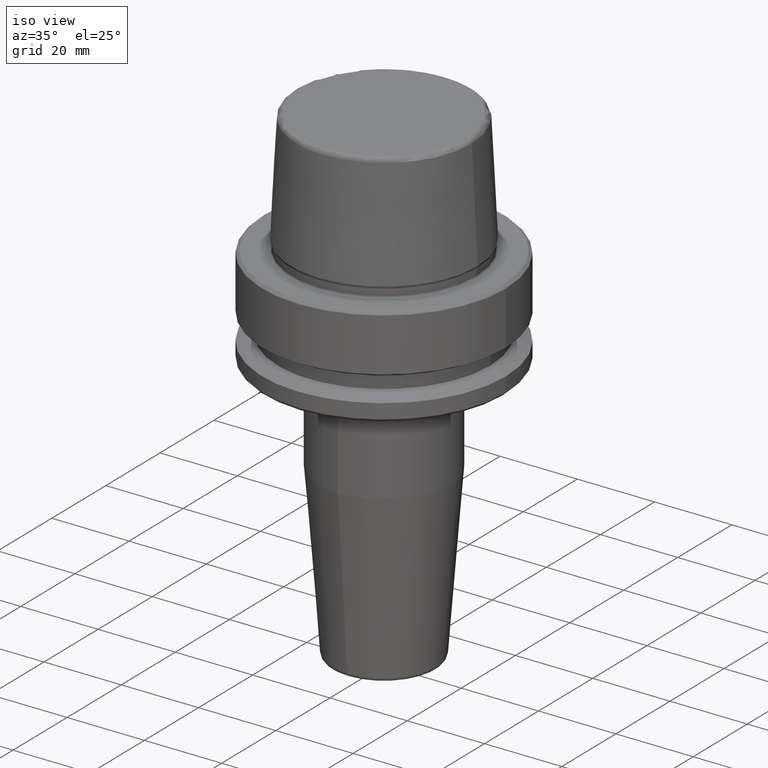
[diagram: clean part render]
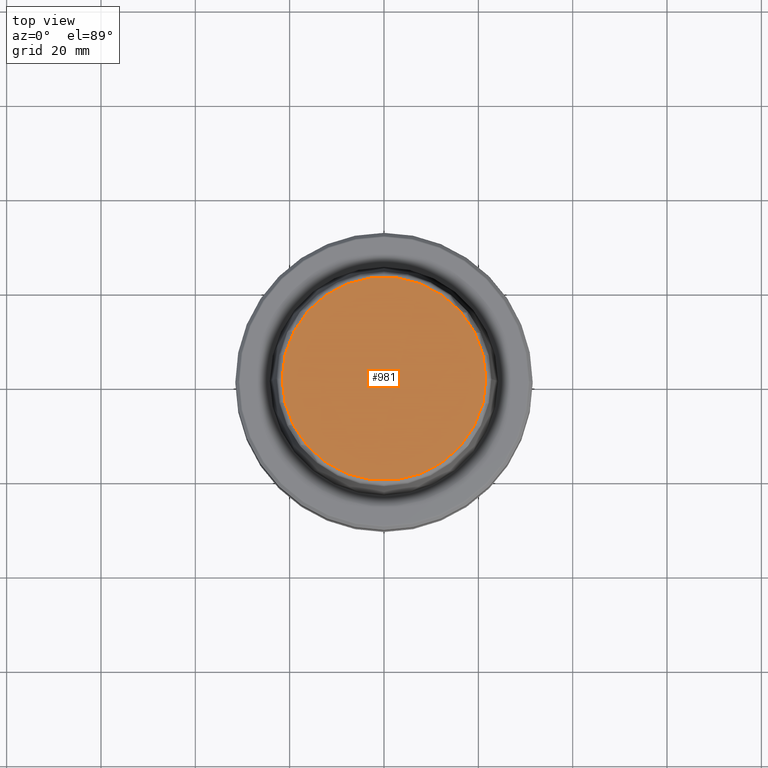
[diagram: tour spotlight — one face highlighted and labeled with its STEP entity id]
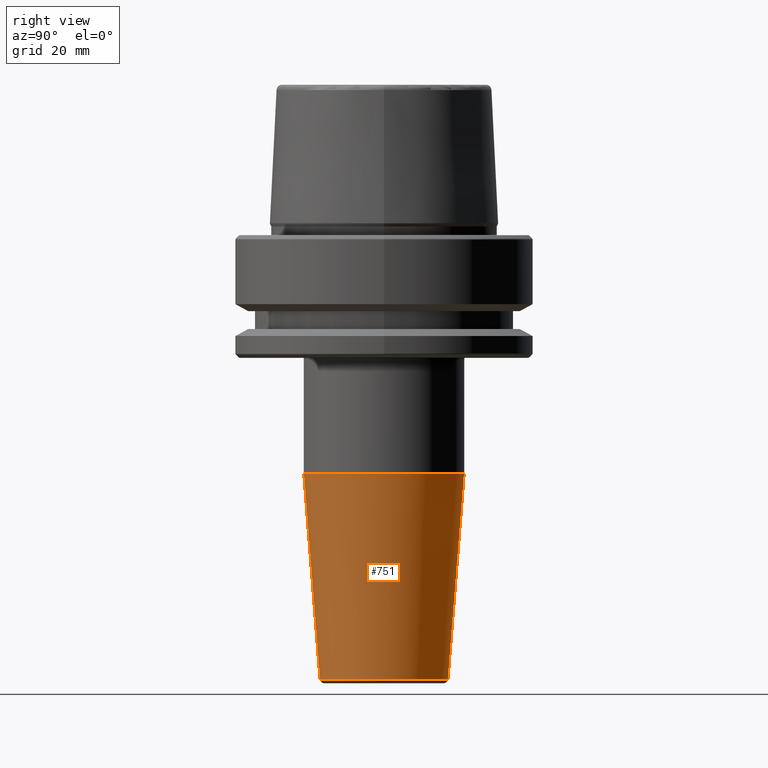
[diagram: tour spotlight — one face highlighted and labeled with its STEP entity id]
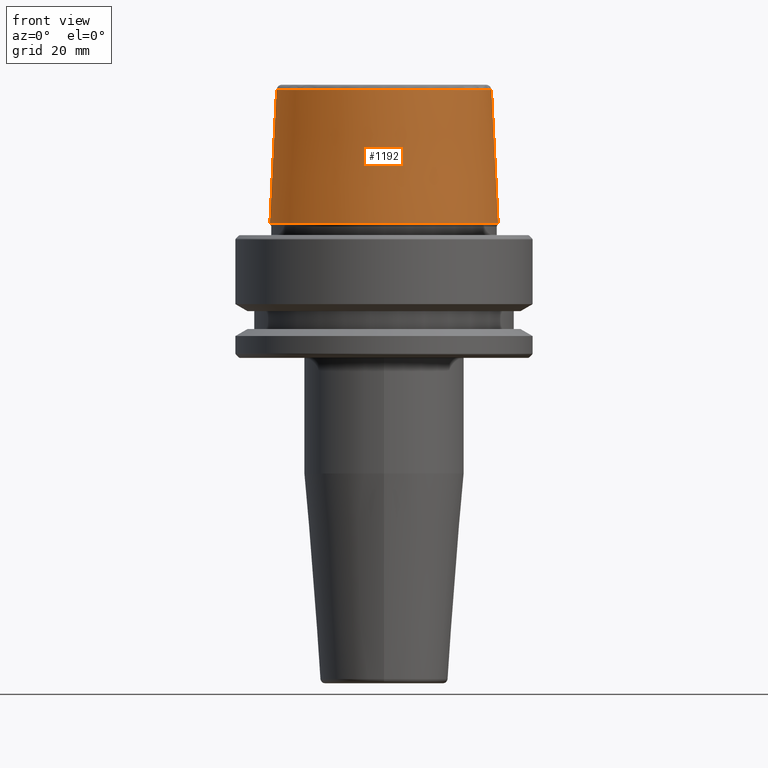
[diagram: tour spotlight — one face highlighted and labeled with its STEP entity id]
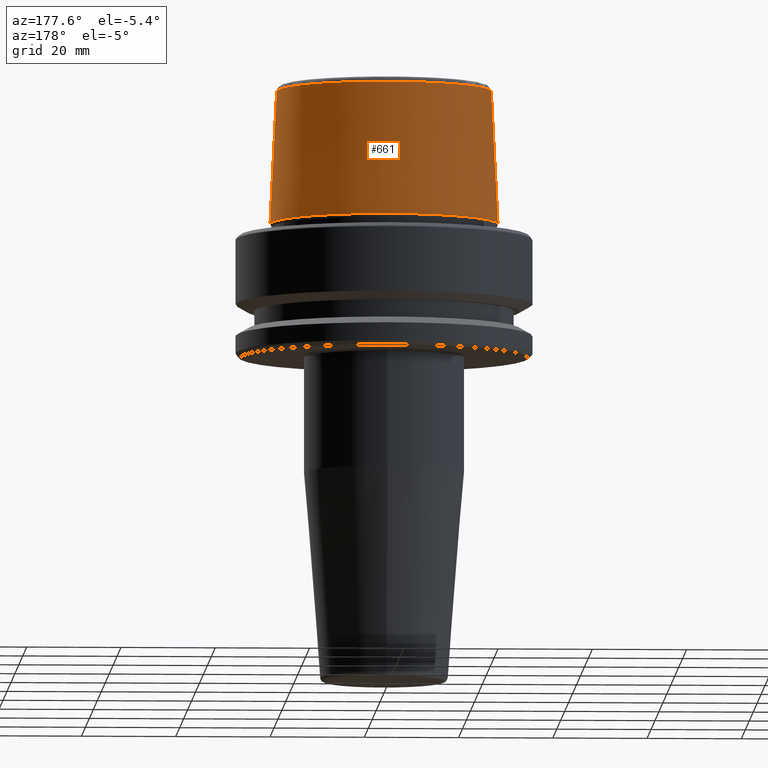
[diagram: tour spotlight — one face highlighted and labeled with its STEP entity id]
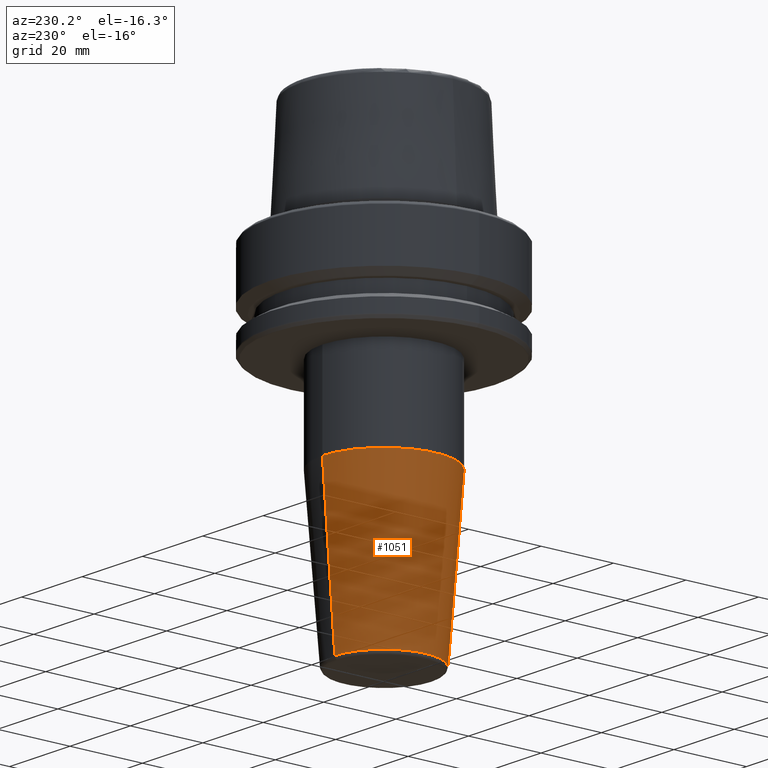
[diagram: tour spotlight — one face highlighted and labeled with its STEP entity id]
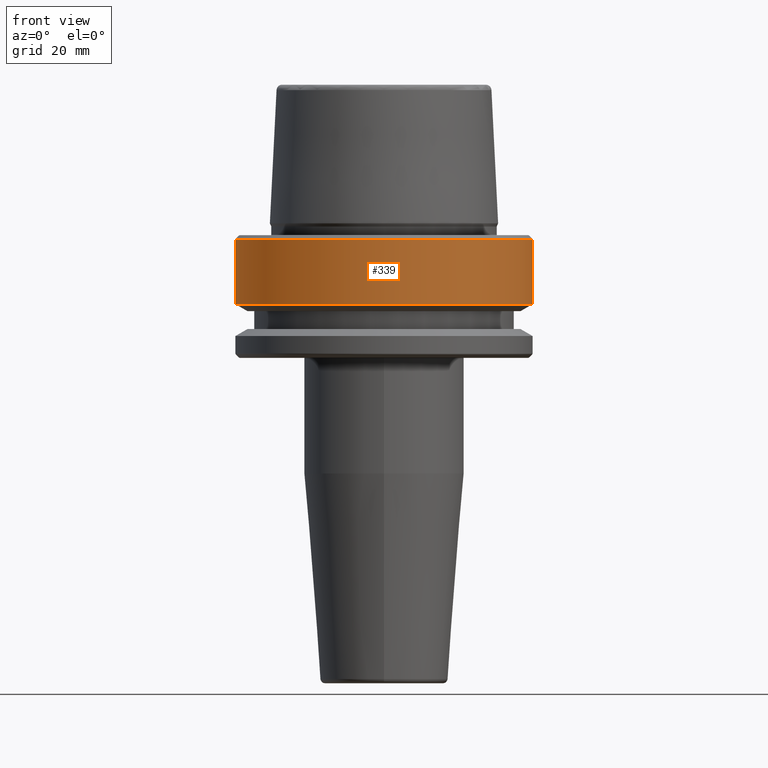
[diagram: tour spotlight — one face highlighted and labeled with its STEP entity id]
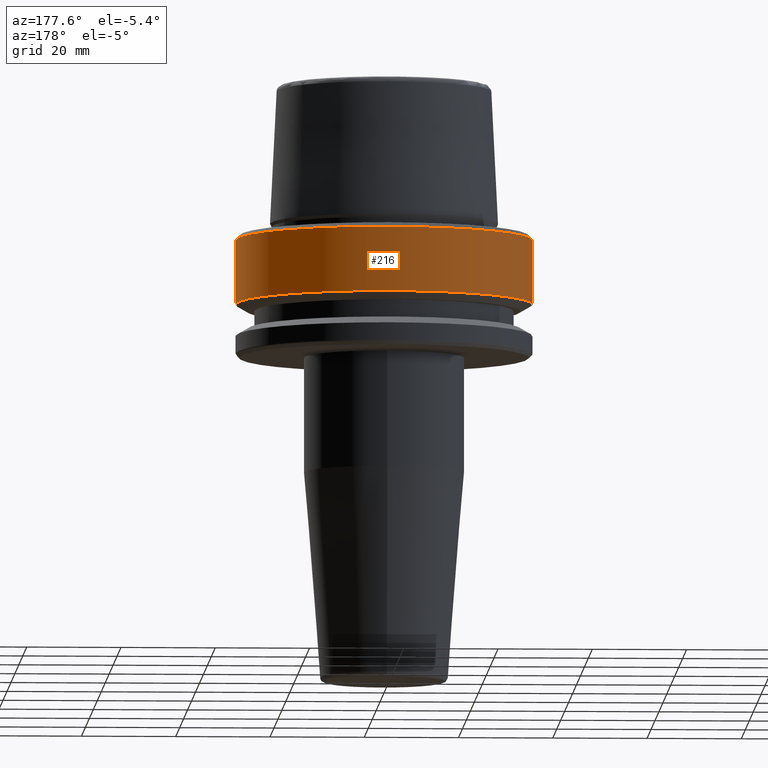
[diagram: tour spotlight — one face highlighted and labeled with its STEP entity id]
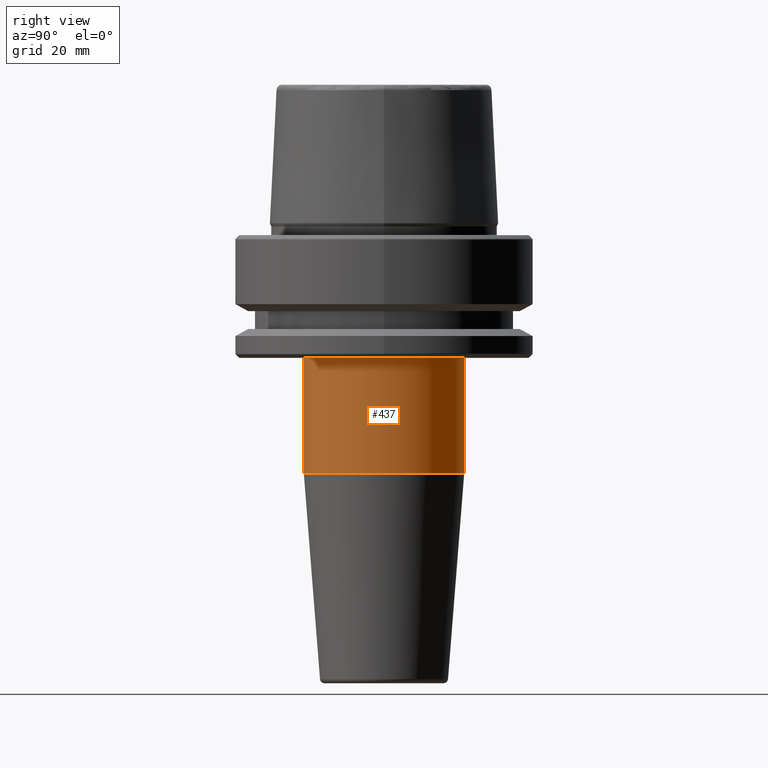
[diagram: tour spotlight — one face highlighted and labeled with its STEP entity id]
A machine part: a face-by-face anatomy tour. The part has 46 B-rep faces; the first image is the clean iso view, then the 8 largest visible faces are spotlighted one at a time (largest first), each with its STEP entity span.

Face 1 — top view, entity #981. In plain terms, the highlighted planar face has unit normal (0, 0, -1).
Definition (entity closure, byte-faithful):
#80 = EDGE_CURVE ( 'NONE', #891, #992, #477, .T. ) ;
#87 = CARTESIAN_POINT ( 'NONE',  ( 0.0000000000000000000, 0.0000000000000000000, 31.89999999999999900 ) ) ;
#100 = CARTESIAN_POINT ( 'NONE',  ( -21.58108272732117100, 2.716307157494421400E-015, 31.89999999999999900 ) ) ;
#109 = FACE_OUTER_BOUND ( 'NONE', #127, .T. ) ;
#112 = CARTESIAN_POINT ( 'NONE',  ( 0.0000000000000000000, 0.0000000000000000000, 31.89999999999999900 ) ) ;
#127 = EDGE_LOOP ( 'NONE', ( #685, #660 ) ) ;
#195 = DIRECTION ( 'NONE',  ( 1.000000000000000000, 0.0000000000000000000, 0.0000000000000000000 ) ) ;
#221 = DIRECTION ( 'NONE',  ( -1.000000000000000000, 0.0000000000000000000, -0.0000000000000000000 ) ) ;
#387 = AXIS2_PLACEMENT_3D ( 'NONE', #112, #822, #221 ) ;
#417 = CARTESIAN_POINT ( 'NONE',  ( 21.58108272732117100, 0.0000000000000000000, 31.89999999999999900 ) ) ;
#428 = AXIS2_PLACEMENT_3D ( 'NONE', #87, #798, #195 ) ;
#477 = CIRCLE ( 'NONE', #1236, 21.58108272732117100 ) ;
#581 = DIRECTION ( 'NONE',  ( -0.0000000000000000000, -0.0000000000000000000, 1.000000000000000000 ) ) ;
#611 = DIRECTION ( 'NONE',  ( 1.000000000000000000, 0.0000000000000000000, 0.0000000000000000000 ) ) ;
#660 = ORIENTED_EDGE ( 'NONE', *, *, #80, .T. ) ;
#685 = ORIENTED_EDGE ( 'NONE', *, *, #829, .T. ) ;
#731 = PLANE ( 'NONE',  #387 ) ;
#798 = DIRECTION ( 'NONE',  ( -0.0000000000000000000, -0.0000000000000000000, 1.000000000000000000 ) ) ;
#822 = DIRECTION ( 'NONE',  ( 0.0000000000000000000, 0.0000000000000000000, -1.000000000000000000 ) ) ;
#829 = EDGE_CURVE ( 'NONE', #992, #891, #1014, .T. ) ;
#891 = VERTEX_POINT ( 'NONE', #100 ) ;
#981 = ADVANCED_FACE ( 'NONE', ( #109 ), #731, .F. ) ;
#992 = VERTEX_POINT ( 'NONE', #417 ) ;
#1014 = CIRCLE ( 'NONE', #428, 21.58108272732117100 ) ;
#1124 = CARTESIAN_POINT ( 'NONE',  ( 0.0000000000000000000, 0.0000000000000000000, 31.89999999999999900 ) ) ;
#1236 = AXIS2_PLACEMENT_3D ( 'NONE', #1124, #581, #611 ) ;

Face 2 — right view, entity #751. In plain terms, the highlighted conical surface has half-angle 4.5 deg.
Definition (entity closure, byte-faithful):
#16 = CIRCLE ( 'NONE', #213, 16.99999999999999600 ) ;
#27 = DIRECTION ( 'NONE',  ( -0.0000000000000000000, -1.153652781805477900E-016, -1.000000000000000000 ) ) ;
#116 = ORIENTED_EDGE ( 'NONE', *, *, #296, .T. ) ;
#129 = CIRCLE ( 'NONE', #791, 13.57252684207493100 ) ;
#212 = LINE ( 'NONE', #1231, #306 ) ;
#213 = AXIS2_PLACEMENT_3D ( 'NONE', #601, #1253, #709 ) ;
#280 = VECTOR ( 'NONE', #626, 1000.000000000000200 ) ;
#283 = CARTESIAN_POINT ( 'NONE',  ( 1.662155155348859600E-015, -13.57252684207493900, -94.07845909572783700 ) ) ;
#296 = EDGE_CURVE ( 'NONE', #1182, #315, #212, .T. ) ;
#306 = VECTOR ( 'NONE', #683, 999.9999999999998900 ) ;
#315 = VERTEX_POINT ( 'NONE', #885 ) ;
#348 = EDGE_CURVE ( 'NONE', #315, #528, #16, .T. ) ;
#441 = FACE_OUTER_BOUND ( 'NONE', #499, .T. ) ;
#499 = EDGE_LOOP ( 'NONE', ( #546, #116, #598, #1235 ) ) ;
#528 = VERTEX_POINT ( 'NONE', #915 ) ;
#546 = ORIENTED_EDGE ( 'NONE', *, *, #700, .F. ) ;
#598 = ORIENTED_EDGE ( 'NONE', *, *, #348, .T. ) ;
#601 = CARTESIAN_POINT ( 'NONE',  ( 0.0000000000000000000, -2.829712240430066800E-015, -50.52828342338445800 ) ) ;
#626 = DIRECTION ( 'NONE',  ( 0.0000000000000000000, -0.07845909572783731100, 0.9969173337331285200 ) ) ;
#646 = CARTESIAN_POINT ( 'NONE',  ( 0.0000000000000000000, -7.853890371681683700E-015, -94.07845909572783700 ) ) ;
#683 = DIRECTION ( 'NONE',  ( 9.608468044709189000E-018, 0.07845909572783754700, 0.9969173337331286300 ) ) ;
#700 = EDGE_CURVE ( 'NONE', #1182, #820, #129, .T. ) ;
#709 = DIRECTION ( 'NONE',  ( 0.0000000000000000000, 1.000000000000000000, 0.0000000000000000000 ) ) ;
#746 = DIRECTION ( 'NONE',  ( 0.0000000000000000000, 1.000000000000000000, 0.0000000000000000000 ) ) ;
#751 = ADVANCED_FACE ( 'NONE', ( #441 ), #1018, .T. ) ;
#788 = LINE ( 'NONE', #1169, #280 ) ;
#791 = AXIS2_PLACEMENT_3D ( 'NONE', #646, #27, #746 ) ;
#820 = VERTEX_POINT ( 'NONE', #283 ) ;
#846 = DIRECTION ( 'NONE',  ( 0.0000000000000000000, 1.153652781805477900E-016, 1.000000000000000000 ) ) ;
#885 = CARTESIAN_POINT ( 'NONE',  ( 2.081899558550499900E-015, 16.99999999999999300, -50.52828342338445800 ) ) ;
#915 = CARTESIAN_POINT ( 'NONE',  ( 0.0000000000000000000, -17.00000000000000000, -50.52828342338445800 ) ) ;
#925 = CARTESIAN_POINT ( 'NONE',  ( 0.0000000000000000000, 13.57252684207492200, -94.07845909572783700 ) ) ;
#1003 = CARTESIAN_POINT ( 'NONE',  ( 0.0000000000000000000, -2.829712240430066800E-015, -50.52828342338445800 ) ) ;
#1018 = CONICAL_SURFACE ( 'NONE', #1065, 16.99999999999999600, 0.07853981633973730600 ) ;
#1057 = EDGE_CURVE ( 'NONE', #820, #528, #788, .T. ) ;
#1065 = AXIS2_PLACEMENT_3D ( 'NONE', #1003, #846, #1072 ) ;
#1072 = DIRECTION ( 'NONE',  ( 0.0000000000000000000, -1.000000000000000000, 0.0000000000000000000 ) ) ;
#1169 = CARTESIAN_POINT ( 'NONE',  ( 0.0000000000000000000, -17.00000000000000000, -50.52828342338445800 ) ) ;
#1182 = VERTEX_POINT ( 'NONE', #925 ) ;
#1231 = CARTESIAN_POINT ( 'NONE',  ( 2.081899558550499900E-015, 16.99999999999999300, -50.52828342338445800 ) ) ;
#1235 = ORIENTED_EDGE ( 'NONE', *, *, #1057, .F. ) ;
#1253 = DIRECTION ( 'NONE',  ( -0.0000000000000000000, -1.153652781805477900E-016, -1.000000000000000000 ) ) ;

Face 3 — front view, entity #1192. In plain terms, the highlighted conical surface has half-angle 2.868 deg.
Definition (entity closure, byte-faithful):
#3 = ORIENTED_EDGE ( 'NONE', *, *, #372, .T. ) ;
#5 = ORIENTED_EDGE ( 'NONE', *, *, #298, .F. ) ;
#10 = EDGE_CURVE ( 'NONE', #708, #818, #1109, .T. ) ;
#136 = DIRECTION ( 'NONE',  ( -1.000000000000000000, 0.0000000000000000000, 0.0000000000000000000 ) ) ;
#173 = VERTEX_POINT ( 'NONE', #813 ) ;
#174 = AXIS2_PLACEMENT_3D ( 'NONE', #429, #1187, #136 ) ;
#191 = CIRCLE ( 'NONE', #342, 24.19537568275369200 ) ;
#206 = VECTOR ( 'NONE', #529, 1000.000000000000200 ) ;
#214 = ORIENTED_EDGE ( 'NONE', *, *, #713, .F. ) ;
#237 = CARTESIAN_POINT ( 'NONE',  ( -22.77957961851797100, 0.0000000000000000000, 30.76004333261571900 ) ) ;
#268 = CIRCLE ( 'NONE', #867, 22.77957961851797100 ) ;
#272 = CARTESIAN_POINT ( 'NONE',  ( 24.19537568275369200, 2.963078938405201500E-015, 2.500000000000002200 ) ) ;
#298 = EDGE_CURVE ( 'NONE', #173, #411, #554, .T. ) ;
#342 = AXIS2_PLACEMENT_3D ( 'NONE', #500, #1150, #607 ) ;
#372 = EDGE_CURVE ( 'NONE', #818, #411, #191, .T. ) ;
#411 = VERTEX_POINT ( 'NONE', #439 ) ;
#429 = CARTESIAN_POINT ( 'NONE',  ( 0.0000000000000000000, 0.0000000000000000000, 2.500000000000002200 ) ) ;
#435 = CARTESIAN_POINT ( 'NONE',  ( 0.0000000000000000000, 0.0000000000000000000, 30.76004333261571900 ) ) ;
#439 = CARTESIAN_POINT ( 'NONE',  ( 24.19537568275369200, 0.0000000000000000000, 2.500000000000002200 ) ) ;
#500 = CARTESIAN_POINT ( 'NONE',  ( 0.0000000000000000000, 0.0000000000000000000, 2.500000000000002200 ) ) ;
#529 = DIRECTION ( 'NONE',  ( -0.05003611051310804400, 0.0000000000000000000, -0.9987474093306675200 ) ) ;
#539 = DIRECTION ( 'NONE',  ( 1.000000000000000000, 0.0000000000000000000, 0.0000000000000000000 ) ) ;
#554 = LINE ( 'NONE', #272, #792 ) ;
#582 = FACE_OUTER_BOUND ( 'NONE', #673, .T. ) ;
#607 = DIRECTION ( 'NONE',  ( 1.000000000000000000, 0.0000000000000000000, 0.0000000000000000000 ) ) ;
#666 = ORIENTED_EDGE ( 'NONE', *, *, #10, .T. ) ;
#673 = EDGE_LOOP ( 'NONE', ( #5, #214, #666, #3 ) ) ;
#708 = VERTEX_POINT ( 'NONE', #237 ) ;
#713 = EDGE_CURVE ( 'NONE', #708, #173, #268, .T. ) ;
#741 = CARTESIAN_POINT ( 'NONE',  ( -24.19537568275369200, 0.0000000000000000000, 2.500000000000002200 ) ) ;
#768 = CARTESIAN_POINT ( 'NONE',  ( -24.19537568275369200, 2.963078938405201500E-015, 2.500000000000002200 ) ) ;
#792 = VECTOR ( 'NONE', #1027, 1000.000000000000200 ) ;
#813 = CARTESIAN_POINT ( 'NONE',  ( 22.77957961851797100, 2.876386432489616700E-015, 30.76004333261571900 ) ) ;
#818 = VERTEX_POINT ( 'NONE', #768 ) ;
#867 = AXIS2_PLACEMENT_3D ( 'NONE', #435, #1078, #539 ) ;
#904 = CONICAL_SURFACE ( 'NONE', #174, 24.19537568275369200, 0.05005701257455997400 ) ;
#1027 = DIRECTION ( 'NONE',  ( 0.05003611051310804400, 6.127656258166099700E-018, -0.9987474093306675200 ) ) ;
#1078 = DIRECTION ( 'NONE',  ( -0.0000000000000000000, -0.0000000000000000000, 1.000000000000000000 ) ) ;
#1109 = LINE ( 'NONE', #741, #206 ) ;
#1150 = DIRECTION ( 'NONE',  ( -0.0000000000000000000, -0.0000000000000000000, 1.000000000000000000 ) ) ;
#1187 = DIRECTION ( 'NONE',  ( 0.0000000000000000000, 0.0000000000000000000, -1.000000000000000000 ) ) ;
#1192 = ADVANCED_FACE ( 'NONE', ( #582 ), #904, .T. ) ;

Face 4 — auxiliary view, entity #661. In plain terms, the highlighted conical surface has half-angle 2.868 deg.
Definition (entity closure, byte-faithful):
#10 = EDGE_CURVE ( 'NONE', #708, #818, #1109, .T. ) ;
#55 = ORIENTED_EDGE ( 'NONE', *, *, #298, .T. ) ;
#58 = CIRCLE ( 'NONE', #655, 22.77957961851797100 ) ;
#163 = CONICAL_SURFACE ( 'NONE', #589, 24.19537568275369200, 0.05005701257455997400 ) ;
#173 = VERTEX_POINT ( 'NONE', #813 ) ;
#177 = EDGE_CURVE ( 'NONE', #173, #708, #58, .T. ) ;
#206 = VECTOR ( 'NONE', #529, 1000.000000000000200 ) ;
#237 = CARTESIAN_POINT ( 'NONE',  ( -22.77957961851797100, 0.0000000000000000000, 30.76004333261571900 ) ) ;
#272 = CARTESIAN_POINT ( 'NONE',  ( 24.19537568275369200, 2.963078938405201500E-015, 2.500000000000002200 ) ) ;
#298 = EDGE_CURVE ( 'NONE', #173, #411, #554, .T. ) ;
#322 = CARTESIAN_POINT ( 'NONE',  ( 0.0000000000000000000, 0.0000000000000000000, 2.500000000000002200 ) ) ;
#366 = CARTESIAN_POINT ( 'NONE',  ( 0.0000000000000000000, 0.0000000000000000000, 2.500000000000002200 ) ) ;
#411 = VERTEX_POINT ( 'NONE', #439 ) ;
#426 = DIRECTION ( 'NONE',  ( 0.0000000000000000000, 0.0000000000000000000, -1.000000000000000000 ) ) ;
#439 = CARTESIAN_POINT ( 'NONE',  ( 24.19537568275369200, 0.0000000000000000000, 2.500000000000002200 ) ) ;
#466 = DIRECTION ( 'NONE',  ( 1.000000000000000000, 0.0000000000000000000, 0.0000000000000000000 ) ) ;
#521 = AXIS2_PLACEMENT_3D ( 'NONE', #366, #1026, #466 ) ;
#529 = DIRECTION ( 'NONE',  ( -0.05003611051310804400, 0.0000000000000000000, -0.9987474093306675200 ) ) ;
#551 = CARTESIAN_POINT ( 'NONE',  ( 0.0000000000000000000, 0.0000000000000000000, 30.76004333261571900 ) ) ;
#554 = LINE ( 'NONE', #272, #792 ) ;
#589 = AXIS2_PLACEMENT_3D ( 'NONE', #322, #426, #1068 ) ;
#651 = EDGE_CURVE ( 'NONE', #411, #818, #1127, .T. ) ;
#655 = AXIS2_PLACEMENT_3D ( 'NONE', #551, #1210, #664 ) ;
#661 = ADVANCED_FACE ( 'NONE', ( #1108 ), #163, .T. ) ;
#662 = ORIENTED_EDGE ( 'NONE', *, *, #10, .F. ) ;
#664 = DIRECTION ( 'NONE',  ( 1.000000000000000000, 0.0000000000000000000, 0.0000000000000000000 ) ) ;
#704 = EDGE_LOOP ( 'NONE', ( #880, #55, #1073, #662 ) ) ;
#708 = VERTEX_POINT ( 'NONE', #237 ) ;
#741 = CARTESIAN_POINT ( 'NONE',  ( -24.19537568275369200, 0.0000000000000000000, 2.500000000000002200 ) ) ;
#768 = CARTESIAN_POINT ( 'NONE',  ( -24.19537568275369200, 2.963078938405201500E-015, 2.500000000000002200 ) ) ;
#792 = VECTOR ( 'NONE', #1027, 1000.000000000000200 ) ;
#813 = CARTESIAN_POINT ( 'NONE',  ( 22.77957961851797100, 2.876386432489616700E-015, 30.76004333261571900 ) ) ;
#818 = VERTEX_POINT ( 'NONE', #768 ) ;
#880 = ORIENTED_EDGE ( 'NONE', *, *, #177, .F. ) ;
#1026 = DIRECTION ( 'NONE',  ( -0.0000000000000000000, -0.0000000000000000000, 1.000000000000000000 ) ) ;
#1027 = DIRECTION ( 'NONE',  ( 0.05003611051310804400, 6.127656258166099700E-018, -0.9987474093306675200 ) ) ;
#1068 = DIRECTION ( 'NONE',  ( -1.000000000000000000, 0.0000000000000000000, 0.0000000000000000000 ) ) ;
#1073 = ORIENTED_EDGE ( 'NONE', *, *, #651, .T. ) ;
#1108 = FACE_OUTER_BOUND ( 'NONE', #704, .T. ) ;
#1109 = LINE ( 'NONE', #741, #206 ) ;
#1127 = CIRCLE ( 'NONE', #521, 24.19537568275369200 ) ;
#1210 = DIRECTION ( 'NONE',  ( -0.0000000000000000000, -0.0000000000000000000, 1.000000000000000000 ) ) ;

Face 5 — auxiliary view, entity #1051. In plain terms, the highlighted conical surface has half-angle 4.5 deg.
Definition (entity closure, byte-faithful):
#73 = CARTESIAN_POINT ( 'NONE',  ( 0.0000000000000000000, -2.829712240430066800E-015, -50.52828342338445800 ) ) ;
#88 = FACE_OUTER_BOUND ( 'NONE', #327, .T. ) ;
#114 = ORIENTED_EDGE ( 'NONE', *, *, #1204, .F. ) ;
#141 = CARTESIAN_POINT ( 'NONE',  ( 0.0000000000000000000, -7.853890371681683700E-015, -94.07845909572783700 ) ) ;
#178 = DIRECTION ( 'NONE',  ( 0.0000000000000000000, 1.000000000000000000, 0.0000000000000000000 ) ) ;
#212 = LINE ( 'NONE', #1231, #306 ) ;
#236 = AXIS2_PLACEMENT_3D ( 'NONE', #141, #845, #239 ) ;
#239 = DIRECTION ( 'NONE',  ( 0.0000000000000000000, 1.000000000000000000, 0.0000000000000000000 ) ) ;
#278 = EDGE_CURVE ( 'NONE', #528, #315, #440, .T. ) ;
#280 = VECTOR ( 'NONE', #626, 1000.000000000000200 ) ;
#283 = CARTESIAN_POINT ( 'NONE',  ( 1.662155155348859600E-015, -13.57252684207493900, -94.07845909572783700 ) ) ;
#296 = EDGE_CURVE ( 'NONE', #1182, #315, #212, .T. ) ;
#306 = VECTOR ( 'NONE', #683, 999.9999999999998900 ) ;
#315 = VERTEX_POINT ( 'NONE', #885 ) ;
#327 = EDGE_LOOP ( 'NONE', ( #446, #114, #855, #718 ) ) ;
#341 = CONICAL_SURFACE ( 'NONE', #871, 16.99999999999999600, 0.07853981633973730600 ) ;
#440 = CIRCLE ( 'NONE', #1047, 16.99999999999999600 ) ;
#446 = ORIENTED_EDGE ( 'NONE', *, *, #296, .F. ) ;
#448 = CARTESIAN_POINT ( 'NONE',  ( 0.0000000000000000000, -2.829712240430066800E-015, -50.52828342338445800 ) ) ;
#528 = VERTEX_POINT ( 'NONE', #915 ) ;
#626 = DIRECTION ( 'NONE',  ( 0.0000000000000000000, -0.07845909572783731100, 0.9969173337331285200 ) ) ;
#683 = DIRECTION ( 'NONE',  ( 9.608468044709189000E-018, 0.07845909572783754700, 0.9969173337331286300 ) ) ;
#718 = ORIENTED_EDGE ( 'NONE', *, *, #278, .T. ) ;
#726 = DIRECTION ( 'NONE',  ( 0.0000000000000000000, -1.000000000000000000, 0.0000000000000000000 ) ) ;
#779 = DIRECTION ( 'NONE',  ( -0.0000000000000000000, -1.153652781805477900E-016, -1.000000000000000000 ) ) ;
#788 = LINE ( 'NONE', #1169, #280 ) ;
#820 = VERTEX_POINT ( 'NONE', #283 ) ;
#845 = DIRECTION ( 'NONE',  ( -0.0000000000000000000, -1.153652781805477900E-016, -1.000000000000000000 ) ) ;
#855 = ORIENTED_EDGE ( 'NONE', *, *, #1057, .T. ) ;
#871 = AXIS2_PLACEMENT_3D ( 'NONE', #448, #1093, #726 ) ;
#885 = CARTESIAN_POINT ( 'NONE',  ( 2.081899558550499900E-015, 16.99999999999999300, -50.52828342338445800 ) ) ;
#915 = CARTESIAN_POINT ( 'NONE',  ( 0.0000000000000000000, -17.00000000000000000, -50.52828342338445800 ) ) ;
#925 = CARTESIAN_POINT ( 'NONE',  ( 0.0000000000000000000, 13.57252684207492200, -94.07845909572783700 ) ) ;
#972 = CIRCLE ( 'NONE', #236, 13.57252684207493100 ) ;
#1047 = AXIS2_PLACEMENT_3D ( 'NONE', #73, #779, #178 ) ;
#1051 = ADVANCED_FACE ( 'NONE', ( #88 ), #341, .T. ) ;
#1057 = EDGE_CURVE ( 'NONE', #820, #528, #788, .T. ) ;
#1093 = DIRECTION ( 'NONE',  ( 0.0000000000000000000, 1.153652781805477900E-016, 1.000000000000000000 ) ) ;
#1169 = CARTESIAN_POINT ( 'NONE',  ( 0.0000000000000000000, -17.00000000000000000, -50.52828342338445800 ) ) ;
#1182 = VERTEX_POINT ( 'NONE', #925 ) ;
#1204 = EDGE_CURVE ( 'NONE', #820, #1182, #972, .T. ) ;
#1231 = CARTESIAN_POINT ( 'NONE',  ( 2.081899558550499900E-015, 16.99999999999999300, -50.52828342338445800 ) ) ;

Face 6 — front view, entity #339. In plain terms, the highlighted cylindrical surface (partial cylindrical patch) has radius 31.5 mm, axis along (-0, -0, 1).
Definition (entity closure, byte-faithful):
#2 = VERTEX_POINT ( 'NONE', #374 ) ;
#8 = EDGE_CURVE ( 'NONE', #2, #535, #866, .T. ) ;
#35 = FACE_OUTER_BOUND ( 'NONE', #777, .T. ) ;
#51 = ORIENTED_EDGE ( 'NONE', *, *, #256, .F. ) ;
#113 = CARTESIAN_POINT ( 'NONE',  ( 31.50000000000000000, 0.0000000000000000000, -0.9656854249492363700 ) ) ;
#117 = DIRECTION ( 'NONE',  ( -0.0000000000000000000, -0.0000000000000000000, 1.000000000000000000 ) ) ;
#166 = AXIS2_PLACEMENT_3D ( 'NONE', #830, #226, #920 ) ;
#226 = DIRECTION ( 'NONE',  ( -0.0000000000000000000, -0.0000000000000000000, 1.000000000000000000 ) ) ;
#256 = EDGE_CURVE ( 'NONE', #620, #525, #1209, .T. ) ;
#266 = DIRECTION ( 'NONE',  ( -0.0000000000000000000, -0.0000000000000000000, 1.000000000000000000 ) ) ;
#276 = AXIS2_PLACEMENT_3D ( 'NONE', #390, #595, #1250 ) ;
#308 = ORIENTED_EDGE ( 'NONE', *, *, #747, .T. ) ;
#339 = ADVANCED_FACE ( 'NONE', ( #35 ), #427, .T. ) ;
#374 = CARTESIAN_POINT ( 'NONE',  ( 31.50000000000000000, 0.0000000000000000000, -14.62250092524070100 ) ) ;
#390 = CARTESIAN_POINT ( 'NONE',  ( 0.0000000000000000000, 0.0000000000000000000, 78.96908074195309300 ) ) ;
#408 = CARTESIAN_POINT ( 'NONE',  ( -31.50000000000000000, 3.857637417314162700E-015, -0.9656854249492363700 ) ) ;
#427 = CYLINDRICAL_SURFACE ( 'NONE', #276, 31.50000000000000000 ) ;
#460 = ORIENTED_EDGE ( 'NONE', *, *, #787, .F. ) ;
#471 = CIRCLE ( 'NONE', #1020, 31.50000000000000000 ) ;
#512 = DIRECTION ( 'NONE',  ( -0.0000000000000000000, -0.0000000000000000000, 1.000000000000000000 ) ) ;
#520 = CIRCLE ( 'NONE', #166, 31.50000000000000000 ) ;
#525 = VERTEX_POINT ( 'NONE', #408 ) ;
#535 = VERTEX_POINT ( 'NONE', #113 ) ;
#595 = DIRECTION ( 'NONE',  ( -0.0000000000000000000, -0.0000000000000000000, 1.000000000000000000 ) ) ;
#620 = VERTEX_POINT ( 'NONE', #869 ) ;
#699 = ORIENTED_EDGE ( 'NONE', *, *, #8, .T. ) ;
#729 = CARTESIAN_POINT ( 'NONE',  ( 31.50000000000000000, 0.0000000000000000000, 78.96908074195309300 ) ) ;
#747 = EDGE_CURVE ( 'NONE', #620, #2, #471, .T. ) ;
#777 = EDGE_LOOP ( 'NONE', ( #51, #308, #699, #460 ) ) ;
#787 = EDGE_CURVE ( 'NONE', #525, #535, #520, .T. ) ;
#830 = CARTESIAN_POINT ( 'NONE',  ( 0.0000000000000000000, 0.0000000000000000000, -0.9656854249492363700 ) ) ;
#866 = LINE ( 'NONE', #729, #1107 ) ;
#869 = CARTESIAN_POINT ( 'NONE',  ( -31.50000000000000000, 3.857637417314162700E-015, -14.62250092524070100 ) ) ;
#878 = CARTESIAN_POINT ( 'NONE',  ( -31.50000000000000000, 3.857637417314162700E-015, 78.96908074195309300 ) ) ;
#920 = DIRECTION ( 'NONE',  ( 1.000000000000000000, 0.0000000000000000000, 0.0000000000000000000 ) ) ;
#979 = VECTOR ( 'NONE', #266, 1000.000000000000000 ) ;
#1020 = AXIS2_PLACEMENT_3D ( 'NONE', #1050, #512, #1161 ) ;
#1050 = CARTESIAN_POINT ( 'NONE',  ( 0.0000000000000000000, 0.0000000000000000000, -14.62250092524070100 ) ) ;
#1107 = VECTOR ( 'NONE', #117, 1000.000000000000000 ) ;
#1161 = DIRECTION ( 'NONE',  ( 1.000000000000000000, 0.0000000000000000000, 0.0000000000000000000 ) ) ;
#1209 = LINE ( 'NONE', #878, #979 ) ;
#1250 = DIRECTION ( 'NONE',  ( 1.000000000000000000, 0.0000000000000000000, 0.0000000000000000000 ) ) ;

Face 7 — auxiliary view, entity #216. In plain terms, the highlighted cylindrical surface (partial cylindrical patch) has radius 31.5 mm, axis along (-0, -0, 1).
Definition (entity closure, byte-faithful):
#2 = VERTEX_POINT ( 'NONE', #374 ) ;
#8 = EDGE_CURVE ( 'NONE', #2, #535, #866, .T. ) ;
#38 = ORIENTED_EDGE ( 'NONE', *, *, #526, .F. ) ;
#113 = CARTESIAN_POINT ( 'NONE',  ( 31.50000000000000000, 0.0000000000000000000, -0.9656854249492363700 ) ) ;
#117 = DIRECTION ( 'NONE',  ( -0.0000000000000000000, -0.0000000000000000000, 1.000000000000000000 ) ) ;
#158 = DIRECTION ( 'NONE',  ( 1.000000000000000000, 0.0000000000000000000, 0.0000000000000000000 ) ) ;
#189 = CIRCLE ( 'NONE', #1247, 31.50000000000000000 ) ;
#216 = ADVANCED_FACE ( 'NONE', ( #488 ), #877, .T. ) ;
#219 = DIRECTION ( 'NONE',  ( -0.0000000000000000000, -0.0000000000000000000, 1.000000000000000000 ) ) ;
#256 = EDGE_CURVE ( 'NONE', #620, #525, #1209, .T. ) ;
#266 = DIRECTION ( 'NONE',  ( -0.0000000000000000000, -0.0000000000000000000, 1.000000000000000000 ) ) ;
#281 = ORIENTED_EDGE ( 'NONE', *, *, #8, .F. ) ;
#374 = CARTESIAN_POINT ( 'NONE',  ( 31.50000000000000000, 0.0000000000000000000, -14.62250092524070100 ) ) ;
#408 = CARTESIAN_POINT ( 'NONE',  ( -31.50000000000000000, 3.857637417314162700E-015, -0.9656854249492363700 ) ) ;
#414 = DIRECTION ( 'NONE',  ( -0.0000000000000000000, -0.0000000000000000000, 1.000000000000000000 ) ) ;
#488 = FACE_OUTER_BOUND ( 'NONE', #491, .T. ) ;
#491 = EDGE_LOOP ( 'NONE', ( #806, #968, #38, #281 ) ) ;
#525 = VERTEX_POINT ( 'NONE', #408 ) ;
#526 = EDGE_CURVE ( 'NONE', #535, #525, #839, .T. ) ;
#535 = VERTEX_POINT ( 'NONE', #113 ) ;
#620 = VERTEX_POINT ( 'NONE', #869 ) ;
#668 = CARTESIAN_POINT ( 'NONE',  ( 0.0000000000000000000, 0.0000000000000000000, 78.96908074195309300 ) ) ;
#729 = CARTESIAN_POINT ( 'NONE',  ( 31.50000000000000000, 0.0000000000000000000, 78.96908074195309300 ) ) ;
#763 = DIRECTION ( 'NONE',  ( -0.0000000000000000000, -0.0000000000000000000, 1.000000000000000000 ) ) ;
#806 = ORIENTED_EDGE ( 'NONE', *, *, #956, .T. ) ;
#816 = CARTESIAN_POINT ( 'NONE',  ( 0.0000000000000000000, 0.0000000000000000000, -14.62250092524070100 ) ) ;
#839 = CIRCLE ( 'NONE', #982, 31.50000000000000000 ) ;
#866 = LINE ( 'NONE', #729, #1107 ) ;
#869 = CARTESIAN_POINT ( 'NONE',  ( -31.50000000000000000, 3.857637417314162700E-015, -14.62250092524070100 ) ) ;
#877 = CYLINDRICAL_SURFACE ( 'NONE', #1009, 31.50000000000000000 ) ;
#878 = CARTESIAN_POINT ( 'NONE',  ( -31.50000000000000000, 3.857637417314162700E-015, 78.96908074195309300 ) ) ;
#913 = DIRECTION ( 'NONE',  ( 1.000000000000000000, 0.0000000000000000000, 0.0000000000000000000 ) ) ;
#956 = EDGE_CURVE ( 'NONE', #2, #620, #189, .T. ) ;
#968 = ORIENTED_EDGE ( 'NONE', *, *, #256, .T. ) ;
#979 = VECTOR ( 'NONE', #266, 1000.000000000000000 ) ;
#982 = AXIS2_PLACEMENT_3D ( 'NONE', #984, #414, #1060 ) ;
#984 = CARTESIAN_POINT ( 'NONE',  ( 0.0000000000000000000, 0.0000000000000000000, -0.9656854249492363700 ) ) ;
#1009 = AXIS2_PLACEMENT_3D ( 'NONE', #668, #763, #158 ) ;
#1060 = DIRECTION ( 'NONE',  ( 1.000000000000000000, 0.0000000000000000000, 0.0000000000000000000 ) ) ;
#1107 = VECTOR ( 'NONE', #117, 1000.000000000000000 ) ;
#1209 = LINE ( 'NONE', #878, #979 ) ;
#1247 = AXIS2_PLACEMENT_3D ( 'NONE', #816, #219, #913 ) ;

Face 8 — right view, entity #437. In plain terms, the highlighted cylindrical surface (partial cylindrical patch) has radius 17 mm, axis along (-0, -0, -1).
Definition (entity closure, byte-faithful):
#16 = CIRCLE ( 'NONE', #213, 16.99999999999999600 ) ;
#32 = EDGE_CURVE ( 'NONE', #169, #528, #70, .T. ) ;
#70 = LINE ( 'NONE', #916, #1120 ) ;
#144 = DIRECTION ( 'NONE',  ( 0.0000000000000000000, 1.000000000000000000, 0.0000000000000000000 ) ) ;
#155 = EDGE_CURVE ( 'NONE', #842, #315, #185, .T. ) ;
#169 = VERTEX_POINT ( 'NONE', #249 ) ;
#185 = LINE ( 'NONE', #784, #781 ) ;
#213 = AXIS2_PLACEMENT_3D ( 'NONE', #601, #1253, #709 ) ;
#249 = CARTESIAN_POINT ( 'NONE',  ( 2.081899558550499900E-015, -16.99999999999999300, -26.00000000000001100 ) ) ;
#251 = AXIS2_PLACEMENT_3D ( 'NONE', #1017, #452, #1102 ) ;
#312 = DIRECTION ( 'NONE',  ( -0.0000000000000000000, -1.153652781805477900E-016, -1.000000000000000000 ) ) ;
#315 = VERTEX_POINT ( 'NONE', #885 ) ;
#337 = FACE_OUTER_BOUND ( 'NONE', #1156, .T. ) ;
#348 = EDGE_CURVE ( 'NONE', #315, #528, #16, .T. ) ;
#363 = CYLINDRICAL_SURFACE ( 'NONE', #695, 16.99999999999999300 ) ;
#422 = ORIENTED_EDGE ( 'NONE', *, *, #32, .T. ) ;
#437 = ADVANCED_FACE ( 'NONE', ( #337 ), #363, .T. ) ;
#452 = DIRECTION ( 'NONE',  ( 0.0000000000000000000, 0.0000000000000000000, -1.000000000000000000 ) ) ;
#476 = DIRECTION ( 'NONE',  ( -0.0000000000000000000, -1.153652781805477900E-016, -1.000000000000000000 ) ) ;
#528 = VERTEX_POINT ( 'NONE', #915 ) ;
#585 = ORIENTED_EDGE ( 'NONE', *, *, #348, .F. ) ;
#601 = CARTESIAN_POINT ( 'NONE',  ( 0.0000000000000000000, -2.829712240430066800E-015, -50.52828342338445800 ) ) ;
#604 = EDGE_CURVE ( 'NONE', #842, #169, #749, .T. ) ;
#659 = ORIENTED_EDGE ( 'NONE', *, *, #155, .F. ) ;
#695 = AXIS2_PLACEMENT_3D ( 'NONE', #755, #1004, #144 ) ;
#709 = DIRECTION ( 'NONE',  ( 0.0000000000000000000, 1.000000000000000000, 0.0000000000000000000 ) ) ;
#738 = ORIENTED_EDGE ( 'NONE', *, *, #604, .T. ) ;
#749 = CIRCLE ( 'NONE', #251, 16.99999999999999300 ) ;
#755 = CARTESIAN_POINT ( 'NONE',  ( 0.0000000000000000000, -7.960204194457797300E-015, -95.00000000000000000 ) ) ;
#781 = VECTOR ( 'NONE', #476, 1000.000000000000000 ) ;
#784 = CARTESIAN_POINT ( 'NONE',  ( 0.0000000000000000000, 16.99999999999998600, -95.00000000000000000 ) ) ;
#842 = VERTEX_POINT ( 'NONE', #1141 ) ;
#885 = CARTESIAN_POINT ( 'NONE',  ( 2.081899558550499900E-015, 16.99999999999999300, -50.52828342338445800 ) ) ;
#915 = CARTESIAN_POINT ( 'NONE',  ( 0.0000000000000000000, -17.00000000000000000, -50.52828342338445800 ) ) ;
#916 = CARTESIAN_POINT ( 'NONE',  ( 2.081899558550499900E-015, -17.00000000000000000, -95.00000000000000000 ) ) ;
#1004 = DIRECTION ( 'NONE',  ( -0.0000000000000000000, -1.153652781805477900E-016, -1.000000000000000000 ) ) ;
#1017 = CARTESIAN_POINT ( 'NONE',  ( 0.0000000000000000000, 0.0000000000000000000, -26.00000000000001100 ) ) ;
#1102 = DIRECTION ( 'NONE',  ( 1.000000000000000000, 0.0000000000000000000, 0.0000000000000000000 ) ) ;
#1120 = VECTOR ( 'NONE', #312, 1000.000000000000000 ) ;
#1141 = CARTESIAN_POINT ( 'NONE',  ( 0.0000000000000000000, 16.99999999999999300, -26.00000000000001100 ) ) ;
#1156 = EDGE_LOOP ( 'NONE', ( #738, #422, #585, #659 ) ) ;
#1253 = DIRECTION ( 'NONE',  ( -0.0000000000000000000, -1.153652781805477900E-016, -1.000000000000000000 ) ) ;